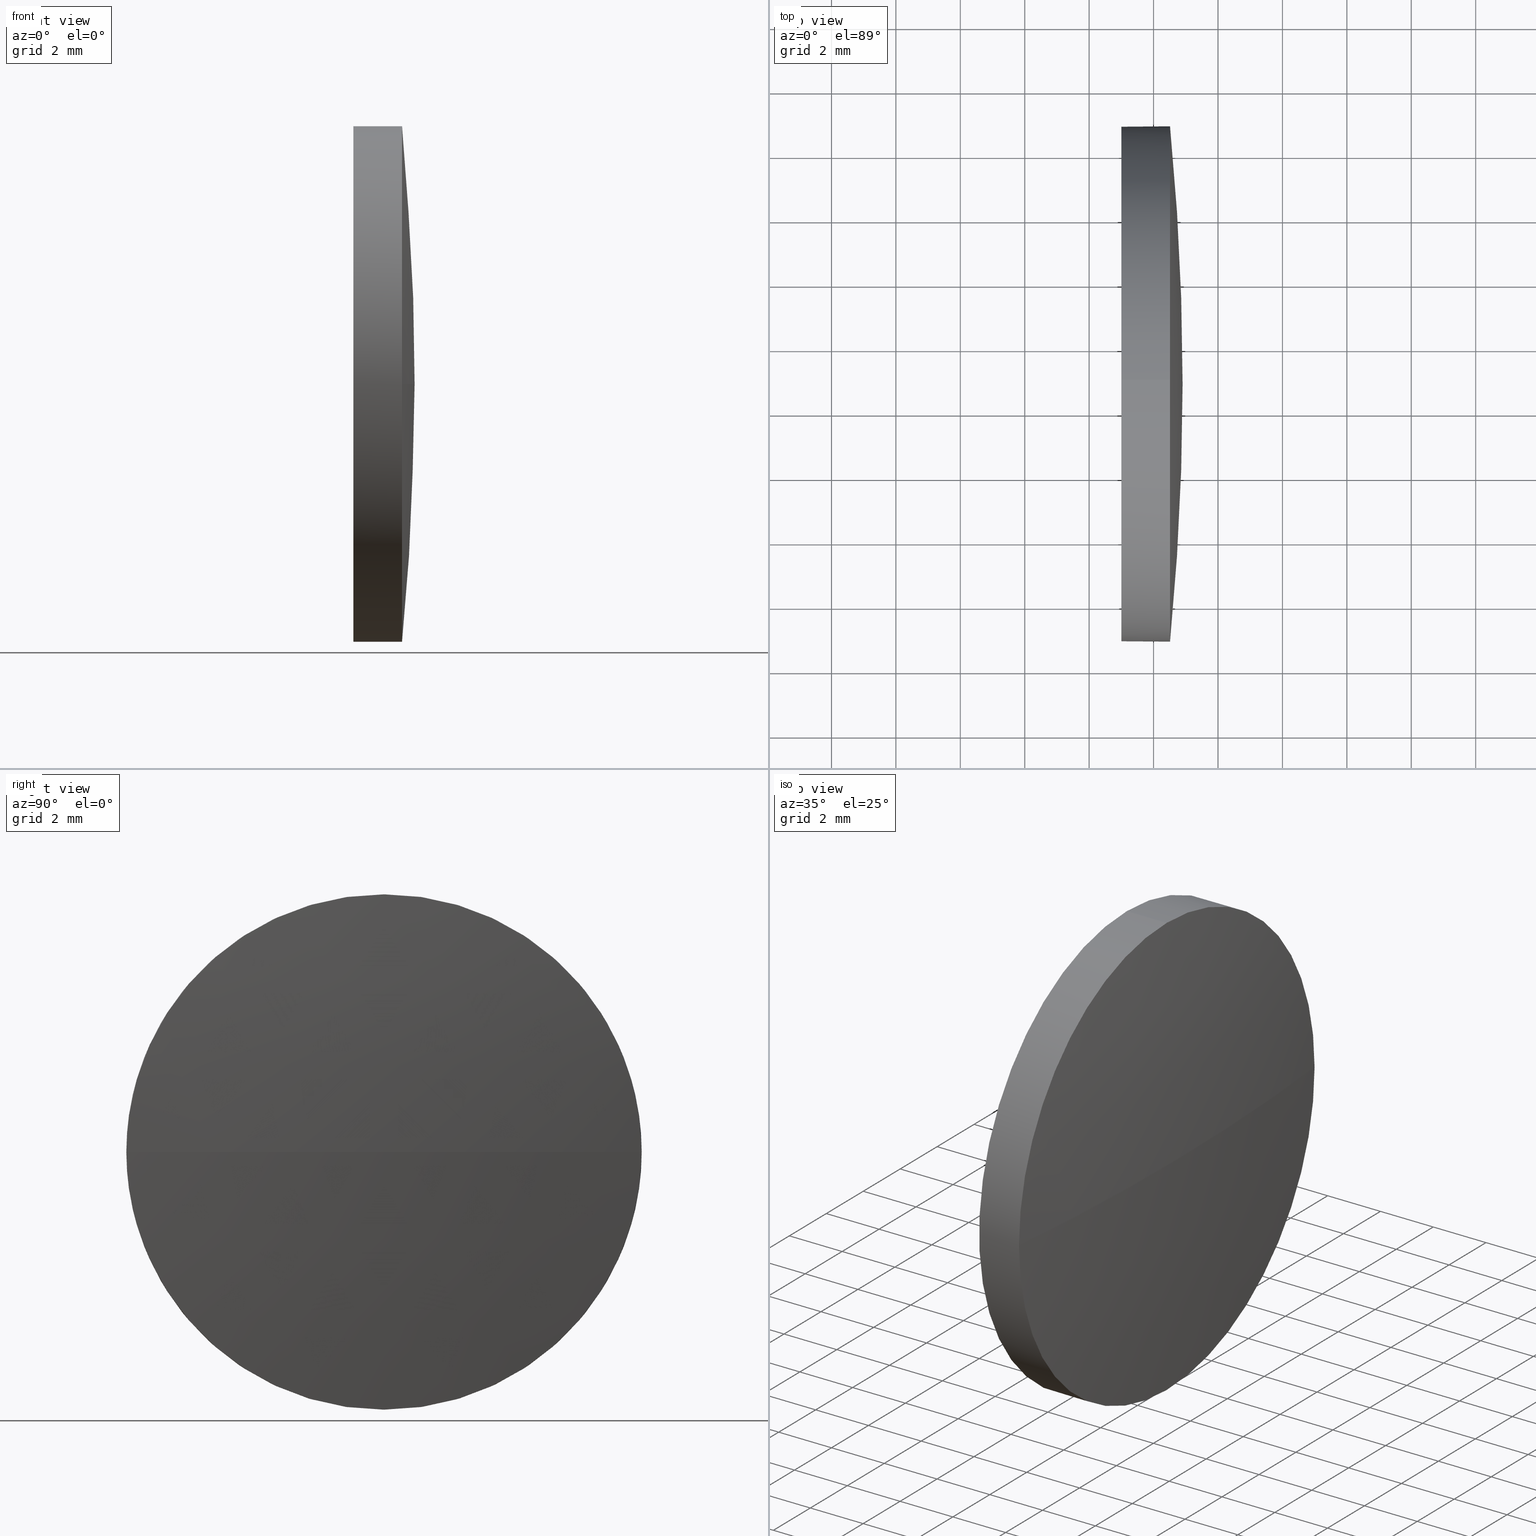
[diagram: canonical four-view strip — front | top / right | iso, engineering-drawing reading convention]
A machine part, canonical four-view strip (front | top / right | iso — engineering-drawing reading convention). The complete STEP part file that produces these views, byte-faithful:
ISO-10303-21;
HEADER;
FILE_DESCRIPTION (( 'STEP AP214' ),
    '1' );
FILE_NAME ('100033.STEP',
    '2019-04-25T07:31:15',
    ( '' ),
    ( '' ),
    'SwSTEP 2.0',
    'SolidWorks 2016',
    '' );
FILE_SCHEMA (( 'AUTOMOTIVE_DESIGN' ));
ENDSEC;

DATA;
#1 = EDGE_CURVE ( 'NONE', #40, #123, #94, .T. ) ;
#2 = CYLINDRICAL_SURFACE ( 'NONE', #115, 7.999999999999952000 ) ;
#3 = CARTESIAN_POINT ( 'NONE',  ( 680.5108542720965900, 360.8508104614297200, 7.999999999999952000 ) ) ;
#4 = CARTESIAN_POINT ( 'NONE',  ( 679.0008542720967200, 360.8508104614297200, -7.999999999999952000 ) ) ;
#5 = ADVANCED_FACE ( 'NONE', ( #172 ), #47, .T. ) ;
#6 = APPLICATION_PROTOCOL_DEFINITION ( 'draft international standard', 'automotive_design', 1998, #35 ) ;
#7 = EDGE_CURVE ( 'NONE', #138, #136, #69, .T. ) ;
#8 = ORIENTED_EDGE ( 'NONE', *, *, #99, .F. ) ;
#9 = CARTESIAN_POINT ( 'NONE',  ( 680.5108542720965900, 360.8508104614297200, -7.999999999999952000 ) ) ;
#10 = AXIS2_PLACEMENT_3D ( 'NONE', #175, #124, #38 ) ;
#11 = CARTESIAN_POINT ( 'NONE',  ( 679.0008542720967200, 360.8508104614297200, 7.999999999999952000 ) ) ;
#12 = SURFACE_SIDE_STYLE ('',( #100 ) ) ;
#13 = ORIENTED_EDGE ( 'NONE', *, *, #158, .F. ) ;
#14 = CIRCLE ( 'NONE', #33, 7.999999999999952000 ) ;
#15 = DIRECTION ( 'NONE',  ( 0.0000000000000000000, 0.0000000000000000000, 1.000000000000000000 ) ) ;
#16 = FILL_AREA_STYLE_COLOUR ( '', #89 ) ;
#17 = CIRCLE ( 'NONE', #37, 7.999999999999952000 ) ;
#18 = ORIENTED_EDGE ( 'NONE', *, *, #158, .T. ) ;
#19 = AXIS2_PLACEMENT_3D ( 'NONE', #87, #141, #70 ) ;
#20 = SURFACE_STYLE_FILL_AREA ( #32 ) ;
#21 = EDGE_LOOP ( 'NONE', ( #135, #170, #155, #30, #137 ) ) ;
#22 = DIRECTION ( 'NONE',  ( 0.0000000000000000000, 0.0000000000000000000, 1.000000000000000000 ) ) ;
#23 = CARTESIAN_POINT ( 'NONE',  ( 598.6545722208140900, 360.8508104614301700, 0.0000000000000000000 ) ) ;
#24 = FACE_OUTER_BOUND ( 'NONE', #55, .T. ) ;
#25 = AXIS2_PLACEMENT_3D ( 'NONE', #183, #164, #151 ) ;
#26 = ORIENTED_EDGE ( 'NONE', *, *, #134, .T. ) ;
#27 = DIRECTION ( 'NONE',  ( 0.0000000000000000000, -1.224646799147353200E-016, 1.000000000000000000 ) ) ;
#28 = DIRECTION ( 'NONE',  ( 0.0000000000000000000, 0.0000000000000000000, -1.000000000000000000 ) ) ;
#29 = STYLED_ITEM ( 'NONE', ( #168 ), #121 ) ;
#30 = ORIENTED_EDGE ( 'NONE', *, *, #7, .F. ) ;
#31 =( NAMED_UNIT ( * ) SI_UNIT ( $, .STERADIAN. ) SOLID_ANGLE_UNIT ( ) );
#32 = FILL_AREA_STYLE ('',( #16 ) ) ;
#33 = AXIS2_PLACEMENT_3D ( 'NONE', #186, #107, #185 ) ;
#34 = AXIS2_PLACEMENT_3D ( 'NONE', #114, #28, #176 ) ;
#35 = APPLICATION_CONTEXT ( 'automotive_design' ) ;
#36 = FACE_OUTER_BOUND ( 'NONE', #85, .T. ) ;
#37 = AXIS2_PLACEMENT_3D ( 'NONE', #52, #71, #174 ) ;
#38 = DIRECTION ( 'NONE',  ( 0.0000000000000000000, 0.0000000000000000000, -1.000000000000000000 ) ) ;
#39 = AXIS2_PLACEMENT_3D ( 'NONE', #106, #64, #171 ) ;
#40 = VERTEX_POINT ( 'NONE', #9 ) ;
#41 = APPLICATION_CONTEXT ( 'automotive_design' ) ;
#42 = DIRECTION ( 'NONE',  ( -1.000000000000000000, -0.0000000000000000000, -0.0000000000000000000 ) ) ;
#43 =( GEOMETRIC_REPRESENTATION_CONTEXT ( 3 ) GLOBAL_UNCERTAINTY_ASSIGNED_CONTEXT ( ( #49 ) ) GLOBAL_UNIT_ASSIGNED_CONTEXT ( ( #74, #46, #31 ) ) REPRESENTATION_CONTEXT ( 'NONE', 'WORKASPACE' ) );
#44 = ADVANCED_FACE ( 'NONE', ( #24 ), #122, .F. ) ;
#45 = ORIENTED_EDGE ( 'NONE', *, *, #118, .T. ) ;
#46 =( NAMED_UNIT ( * ) PLANE_ANGLE_UNIT ( ) SI_UNIT ( $, .RADIAN. ) );
#47 = SPHERICAL_SURFACE ( 'NONE', #78, 82.24628205128244900 ) ;
#48 = AXIS2_PLACEMENT_3D ( 'NONE', #180, #42, #96 ) ;
#49 = UNCERTAINTY_MEASURE_WITH_UNIT (LENGTH_MEASURE( 1.000000000000000100E-005 ), #74, 'distance_accuracy_value', 'NONE');
#50 = CIRCLE ( 'NONE', #161, 82.24628205128247800 ) ;
#51 = AXIS2_PLACEMENT_3D ( 'NONE', #76, #79, #156 ) ;
#52 = CARTESIAN_POINT ( 'NONE',  ( 680.5108542720965900, 360.8508104614297200, 0.0000000000000000000 ) ) ;
#53 = EDGE_CURVE ( 'NONE', #123, #136, #72, .T. ) ;
#54 = PRODUCT_DEFINITION_SHAPE ( 'NONE', 'NONE',  #82 ) ;
#55 = EDGE_LOOP ( 'NONE', ( #129, #178 ) ) ;
#56 = FILL_AREA_STYLE_COLOUR ( '', #105 ) ;
#57 = EDGE_LOOP ( 'NONE', ( #163, #18, #81, #148 ) ) ;
#58 = CARTESIAN_POINT ( 'NONE',  ( 598.6545722208140900, 360.8508104614301700, 0.0000000000000000000 ) ) ;
#59 = UNCERTAINTY_MEASURE_WITH_UNIT (LENGTH_MEASURE( 1.000000000000000100E-005 ), #167, 'distance_accuracy_value', 'NONE');
#60 = PRODUCT_DEFINITION_FORMATION_WITH_SPECIFIED_SOURCE ( '�κ�', '', #146, .NOT_KNOWN. ) ;
#61 = VERTEX_POINT ( 'NONE', #160 ) ;
#62 = SURFACE_STYLE_USAGE ( .BOTH. , #153 ) ;
#63 = ORIENTED_EDGE ( 'NONE', *, *, #118, .F. ) ;
#64 = DIRECTION ( 'NONE',  ( -1.000000000000000000, -0.0000000000000000000, -0.0000000000000000000 ) ) ;
#65 = ADVANCED_FACE ( 'NONE', ( #184 ), #108, .T. ) ;
#66 =( NAMED_UNIT ( * ) PLANE_ANGLE_UNIT ( ) SI_UNIT ( $, .RADIAN. ) );
#67 =( GEOMETRIC_REPRESENTATION_CONTEXT ( 3 ) GLOBAL_UNCERTAINTY_ASSIGNED_CONTEXT ( ( #179 ) ) GLOBAL_UNIT_ASSIGNED_CONTEXT ( ( #131, #66, #128 ) ) REPRESENTATION_CONTEXT ( 'NONE', 'WORKASPACE' ) );
#68 = AXIS2_PLACEMENT_3D ( 'NONE', #182, #149, #165 ) ;
#69 = LINE ( 'NONE', #127, #132 ) ;
#70 = DIRECTION ( 'NONE',  ( 0.0000000000000000000, 0.0000000000000000000, 1.000000000000000000 ) ) ;
#71 = DIRECTION ( 'NONE',  ( -1.000000000000000000, -0.0000000000000000000, -0.0000000000000000000 ) ) ;
#72 = CIRCLE ( 'NONE', #19, 7.999999999999952000 ) ;
#73 = CARTESIAN_POINT ( 'NONE',  ( 675.2755856517344500, 360.8508104614297200, -7.999999999999952000 ) ) ;
#74 =( LENGTH_UNIT ( ) NAMED_UNIT ( * ) SI_UNIT ( .MILLI., .METRE. ) );
#75 = ADVANCED_BREP_SHAPE_REPRESENTATION ( '100033', ( #121, #93 ), #67 ) ;
#76 = CARTESIAN_POINT ( 'NONE',  ( 680.5108542720965900, 360.8508104614297200, 0.0000000000000000000 ) ) ;
#77 = ORIENTED_EDGE ( 'NONE', *, *, #53, .F. ) ;
#78 = AXIS2_PLACEMENT_3D ( 'NONE', #23, #83, #162 ) ;
#79 = DIRECTION ( 'NONE',  ( -1.000000000000000000, -0.0000000000000000000, -0.0000000000000000000 ) ) ;
#80 = SHAPE_DEFINITION_REPRESENTATION ( #54, #75 ) ;
#81 = ORIENTED_EDGE ( 'NONE', *, *, #134, .F. ) ;
#82 = PRODUCT_DEFINITION ( 'δ֪', '', #60, #102 ) ;
#83 = DIRECTION ( 'NONE',  ( 0.0000000000000000000, 0.0000000000000000000, 1.000000000000000000 ) ) ;
#84 = PRESENTATION_STYLE_ASSIGNMENT (( #177 ) ) ;
#85 = EDGE_LOOP ( 'NONE', ( #120, #26, #45, #116, #77 ) ) ;
#86 = PRESENTATION_LAYER_ASSIGNMENT (  '', '', ( #117 ) ) ;
#87 = CARTESIAN_POINT ( 'NONE',  ( 679.0008542720967200, 360.8508104614297200, 0.0000000000000000000 ) ) ;
#88 = DIRECTION ( 'NONE',  ( -1.000000000000000000, -0.0000000000000000000, -0.0000000000000000000 ) ) ;
#89 = COLOUR_RGB ( '',1.000000000000000000, 1.000000000000000000, 1.000000000000000000 ) ;
#90 = PRESENTATION_LAYER_ASSIGNMENT (  '', '', ( #29 ) ) ;
#91 = CLOSED_SHELL ( 'NONE', ( #97, #65, #5, #112, #44 ) ) ;
#92 = FILL_AREA_STYLE ('',( #56 ) ) ;
#93 = AXIS2_PLACEMENT_3D ( 'NONE', #110, #15, #130 ) ;
#94 = LINE ( 'NONE', #73, #101 ) ;
#95 =( NAMED_UNIT ( * ) SI_UNIT ( $, .STERADIAN. ) SOLID_ANGLE_UNIT ( ) );
#96 = DIRECTION ( 'NONE',  ( 0.0000000000000000000, 0.0000000000000000000, 1.000000000000000000 ) ) ;
#97 = ADVANCED_FACE ( 'NONE', ( #104 ), #111, .T. ) ;
#98 = DIRECTION ( 'NONE',  ( 0.0000000000000000000, -1.000000000000000000, -1.224646799147353000E-016 ) ) ;
#99 = EDGE_CURVE ( 'NONE', #138, #154, #17, .T. ) ;
#100 = SURFACE_STYLE_FILL_AREA ( #92 ) ;
#101 = VECTOR ( 'NONE', #88, 1000.000000000000000 ) ;
#102 = PRODUCT_DEFINITION_CONTEXT ( 'detailed design', #35, 'design' ) ;
#103 = MECHANICAL_DESIGN_GEOMETRIC_PRESENTATION_REPRESENTATION (  '', ( #29 ), #43 ) ;
#104 = FACE_OUTER_BOUND ( 'NONE', #21, .T. ) ;
#105 = COLOUR_RGB ( '',1.000000000000000000, 1.000000000000000000, 1.000000000000000000 ) ;
#106 = CARTESIAN_POINT ( 'NONE',  ( 680.5108542720965900, 360.8508104614297200, 0.0000000000000000000 ) ) ;
#107 = DIRECTION ( 'NONE',  ( -1.000000000000000000, -0.0000000000000000000, -0.0000000000000000000 ) ) ;
#108 = SPHERICAL_SURFACE ( 'NONE', #25, 82.24628205128244900 ) ;
#109 = PRODUCT_RELATED_PRODUCT_CATEGORY ( 'part', '', ( #146 ) ) ;
#110 = CARTESIAN_POINT ( 'NONE',  ( 0.0000000000000000000, 0.0000000000000000000, 0.0000000000000000000 ) ) ;
#111 = CYLINDRICAL_SURFACE ( 'NONE', #68, 7.999999999999952000 ) ;
#112 = ADVANCED_FACE ( 'NONE', ( #36 ), #2, .T. ) ;
#113 = VERTEX_POINT ( 'NONE', #144 ) ;
#114 = CARTESIAN_POINT ( 'NONE',  ( 598.6545722208140900, 360.8508104614301700, 0.0000000000000000000 ) ) ;
#115 = AXIS2_PLACEMENT_3D ( 'NONE', #150, #125, #22 ) ;
#116 = ORIENTED_EDGE ( 'NONE', *, *, #7, .T. ) ;
#117 = STYLED_ITEM ( 'NONE', ( #84 ), #75 ) ;
#118 = EDGE_CURVE ( 'NONE', #61, #138, #14, .T. ) ;
#119 = CIRCLE ( 'NONE', #39, 7.999999999999952000 ) ;
#120 = ORIENTED_EDGE ( 'NONE', *, *, #1, .F. ) ;
#121 = MANIFOLD_SOLID_BREP ( '��ת1', #91 ) ;
#122 = PLANE ( 'NONE',  #10 ) ;
#123 = VERTEX_POINT ( 'NONE', #4 ) ;
#124 = DIRECTION ( 'NONE',  ( 1.000000000000000000, 0.0000000000000000000, 0.0000000000000000000 ) ) ;
#125 = DIRECTION ( 'NONE',  ( -1.000000000000000000, -0.0000000000000000000, -0.0000000000000000000 ) ) ;
#126 = EDGE_LOOP ( 'NONE', ( #13, #140, #8, #63 ) ) ;
#127 = CARTESIAN_POINT ( 'NONE',  ( 675.2755856517344500, 360.8508104614297200, 7.999999999999952000 ) ) ;
#128 =( NAMED_UNIT ( * ) SI_UNIT ( $, .STERADIAN. ) SOLID_ANGLE_UNIT ( ) );
#129 = ORIENTED_EDGE ( 'NONE', *, *, #159, .T. ) ;
#130 = DIRECTION ( 'NONE',  ( 1.000000000000000000, 0.0000000000000000000, 0.0000000000000000000 ) ) ;
#131 =( LENGTH_UNIT ( ) NAMED_UNIT ( * ) SI_UNIT ( .MILLI., .METRE. ) );
#132 = VECTOR ( 'NONE', #166, 1000.000000000000000 ) ;
#133 = PRODUCT_CONTEXT ( 'NONE', #41, 'mechanical' ) ;
#134 = EDGE_CURVE ( 'NONE', #40, #61, #147, .T. ) ;
#135 = ORIENTED_EDGE ( 'NONE', *, *, #139, .T. ) ;
#136 = VERTEX_POINT ( 'NONE', #11 ) ;
#137 = ORIENTED_EDGE ( 'NONE', *, *, #99, .T. ) ;
#138 = VERTEX_POINT ( 'NONE', #3 ) ;
#139 = EDGE_CURVE ( 'NONE', #154, #40, #119, .T. ) ;
#140 = ORIENTED_EDGE ( 'NONE', *, *, #145, .T. ) ;
#141 = DIRECTION ( 'NONE',  ( -1.000000000000000000, -0.0000000000000000000, -0.0000000000000000000 ) ) ;
#142 =( NAMED_UNIT ( * ) PLANE_ANGLE_UNIT ( ) SI_UNIT ( $, .RADIAN. ) );
#143 = CIRCLE ( 'NONE', #48, 7.999999999999952000 ) ;
#144 = CARTESIAN_POINT ( 'NONE',  ( 680.9008542720965800, 360.8508104614301700, 0.0000000000000000000 ) ) ;
#145 = EDGE_CURVE ( 'NONE', #113, #154, #50, .T. ) ;
#146 = PRODUCT ( '100033', '100033', '', ( #133 ) ) ;
#147 = CIRCLE ( 'NONE', #51, 7.999999999999952000 ) ;
#148 = ORIENTED_EDGE ( 'NONE', *, *, #139, .F. ) ;
#149 = DIRECTION ( 'NONE',  ( -1.000000000000000000, -0.0000000000000000000, -0.0000000000000000000 ) ) ;
#150 = CARTESIAN_POINT ( 'NONE',  ( 675.2755856517344500, 360.8508104614297200, 0.0000000000000000000 ) ) ;
#151 = DIRECTION ( 'NONE',  ( 0.0000000000000000000, -1.000000000000000000, 0.0000000000000000000 ) ) ;
#152 = APPLICATION_PROTOCOL_DEFINITION ( 'draft international standard', 'automotive_design', 1998, #41 ) ;
#153 = SURFACE_SIDE_STYLE ('',( #20 ) ) ;
#154 = VERTEX_POINT ( 'NONE', #181 ) ;
#155 = ORIENTED_EDGE ( 'NONE', *, *, #159, .F. ) ;
#156 = DIRECTION ( 'NONE',  ( 0.0000000000000000000, 0.0000000000000000000, 1.000000000000000000 ) ) ;
#157 = MECHANICAL_DESIGN_GEOMETRIC_PRESENTATION_REPRESENTATION (  '', ( #117 ), #169 ) ;
#158 = EDGE_CURVE ( 'NONE', #113, #61, #173, .T. ) ;
#159 = EDGE_CURVE ( 'NONE', #136, #123, #143, .T. ) ;
#160 = CARTESIAN_POINT ( 'NONE',  ( 680.5108542720965900, 352.8508104614300600, 0.0000000000000000000 ) ) ;
#161 = AXIS2_PLACEMENT_3D ( 'NONE', #58, #27, #98 ) ;
#162 = DIRECTION ( 'NONE',  ( 0.0000000000000000000, -1.000000000000000000, 0.0000000000000000000 ) ) ;
#163 = ORIENTED_EDGE ( 'NONE', *, *, #145, .F. ) ;
#164 = DIRECTION ( 'NONE',  ( 0.0000000000000000000, 0.0000000000000000000, 1.000000000000000000 ) ) ;
#165 = DIRECTION ( 'NONE',  ( 0.0000000000000000000, 0.0000000000000000000, 1.000000000000000000 ) ) ;
#166 = DIRECTION ( 'NONE',  ( -1.000000000000000000, -0.0000000000000000000, -0.0000000000000000000 ) ) ;
#167 =( LENGTH_UNIT ( ) NAMED_UNIT ( * ) SI_UNIT ( .MILLI., .METRE. ) );
#168 = PRESENTATION_STYLE_ASSIGNMENT (( #62 ) ) ;
#169 =( GEOMETRIC_REPRESENTATION_CONTEXT ( 3 ) GLOBAL_UNCERTAINTY_ASSIGNED_CONTEXT ( ( #59 ) ) GLOBAL_UNIT_ASSIGNED_CONTEXT ( ( #167, #142, #95 ) ) REPRESENTATION_CONTEXT ( 'NONE', 'WORKASPACE' ) );
#170 = ORIENTED_EDGE ( 'NONE', *, *, #1, .T. ) ;
#171 = DIRECTION ( 'NONE',  ( 0.0000000000000000000, 0.0000000000000000000, 1.000000000000000000 ) ) ;
#172 = FACE_OUTER_BOUND ( 'NONE', #57, .T. ) ;
#173 = CIRCLE ( 'NONE', #34, 82.24628205128247800 ) ;
#174 = DIRECTION ( 'NONE',  ( 0.0000000000000000000, 0.0000000000000000000, 1.000000000000000000 ) ) ;
#175 = CARTESIAN_POINT ( 'NONE',  ( 679.0008542720967200, 360.8508104614297200, 0.0000000000000000000 ) ) ;
#176 = DIRECTION ( 'NONE',  ( -1.000000000000000000, 0.0000000000000000000, 0.0000000000000000000 ) ) ;
#177 = SURFACE_STYLE_USAGE ( .BOTH. , #12 ) ;
#178 = ORIENTED_EDGE ( 'NONE', *, *, #53, .T. ) ;
#179 = UNCERTAINTY_MEASURE_WITH_UNIT (LENGTH_MEASURE( 1.000000000000000100E-005 ), #131, 'distance_accuracy_value', 'NONE');
#180 = CARTESIAN_POINT ( 'NONE',  ( 679.0008542720967200, 360.8508104614297200, 0.0000000000000000000 ) ) ;
#181 = CARTESIAN_POINT ( 'NONE',  ( 680.5108542720965900, 368.8508104614298300, 9.797174393178378000E-016 ) ) ;
#182 = CARTESIAN_POINT ( 'NONE',  ( 675.2755856517344500, 360.8508104614297200, 0.0000000000000000000 ) ) ;
#183 = CARTESIAN_POINT ( 'NONE',  ( 598.6545722208140900, 360.8508104614301700, 0.0000000000000000000 ) ) ;
#184 = FACE_OUTER_BOUND ( 'NONE', #126, .T. ) ;
#185 = DIRECTION ( 'NONE',  ( 0.0000000000000000000, 0.0000000000000000000, 1.000000000000000000 ) ) ;
#186 = CARTESIAN_POINT ( 'NONE',  ( 680.5108542720965900, 360.8508104614297200, 0.0000000000000000000 ) ) ;
ENDSEC;
END-ISO-10303-21;
